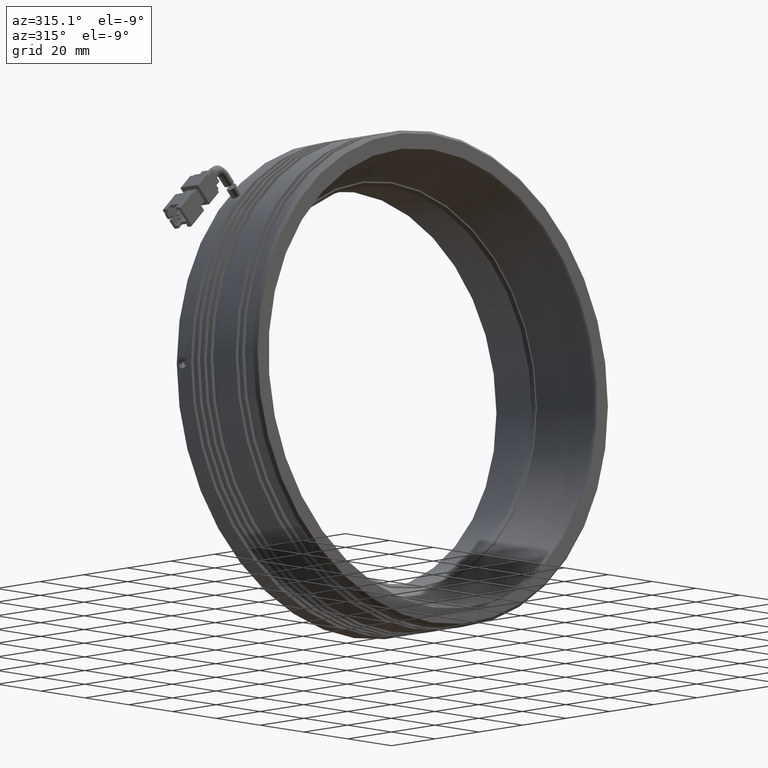
[diagram: clean part render]
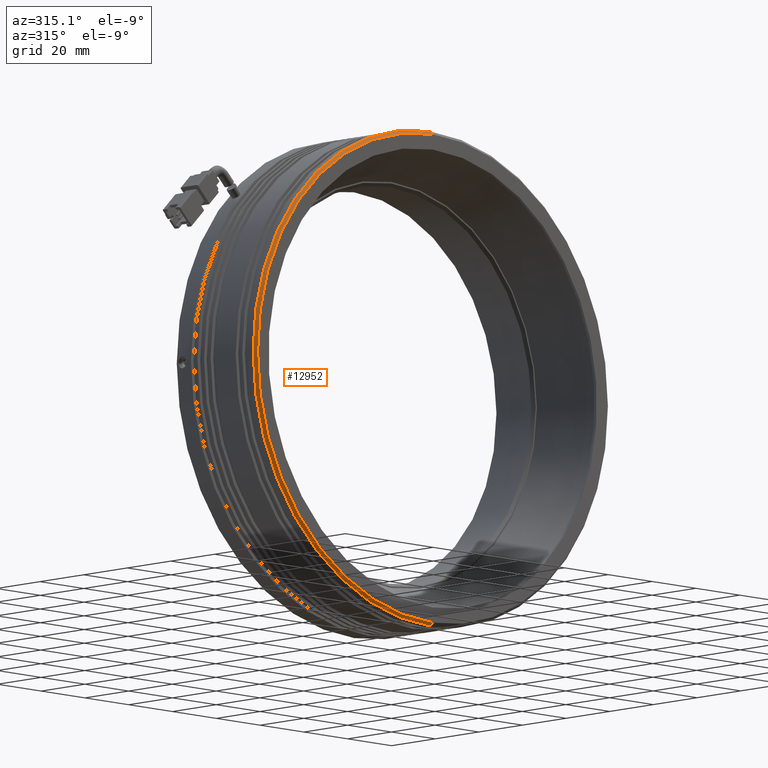
[diagram: same view with one face highlighted and labeled with its STEP entity id]
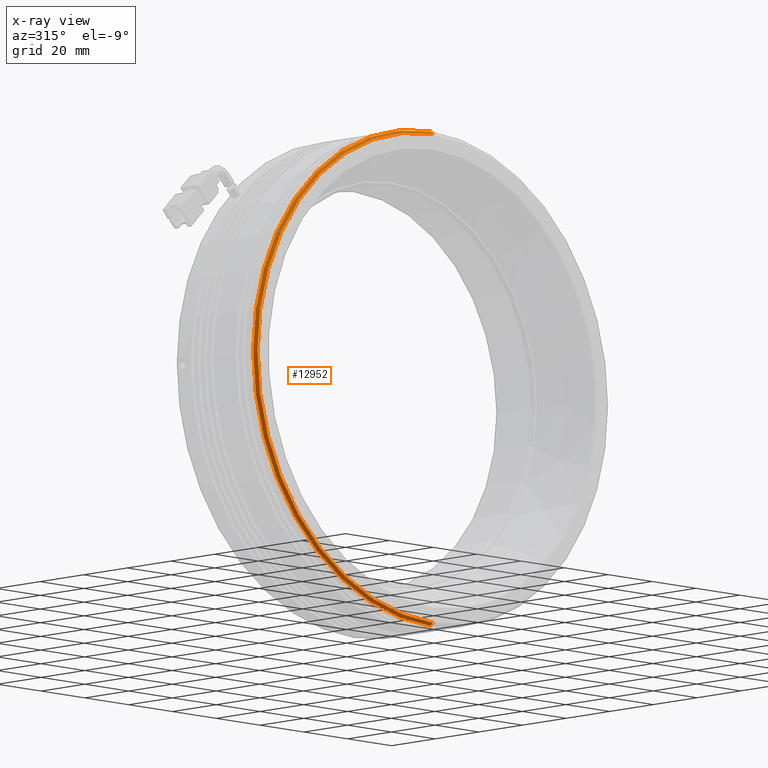
[diagram: x-ray of the same camera — body ghosted, the highlighted face saturated]
A machine part, auxiliary view. The second image highlights one B-rep face of the part: STEP entity #12952.
The next image is the same camera in x-ray: the body ghosted, the highlighted face saturated — about 0% of this face is hidden behind the body in this view.
In plain terms, the highlighted conical surface has half-angle 45 deg.
Its self-contained STEP definition (entity closure, byte-faithful):
#230 = EDGE_CURVE ( 'NONE', #1964, #7452, #5621, .T. ) ;
#249 = CARTESIAN_POINT ( 'NONE',  ( -9.785022266880036000, -9.128885628159958200, 79.99999999999998600 ) ) ;
#761 = DIRECTION ( 'NONE',  ( 8.659560562354931600E-017, 0.7071067811865475700, -0.7071067811865474600 ) ) ;
#947 = CARTESIAN_POINT ( 'NONE',  ( -9.785022266880025300, -9.128885628159958200, -79.99999999999998600 ) ) ;
#1091 = DIRECTION ( 'NONE',  ( -0.0000000000000000000, -1.000000000000000000, -0.0000000000000000000 ) ) ;
#1463 = CARTESIAN_POINT ( 'NONE',  ( -9.785022266880025300, -8.128885628159942200, -81.00000000000000000 ) ) ;
#1799 = EDGE_CURVE ( 'NONE', #2942, #7452, #7441, .T. ) ;
#1835 = DIRECTION ( 'NONE',  ( -0.0000000000000000000, 1.000000000000000000, 0.0000000000000000000 ) ) ;
#1964 = VERTEX_POINT ( 'NONE', #947 ) ;
#2073 = EDGE_LOOP ( 'NONE', ( #2391, #4756, #12316, #10896 ) ) ;
#2164 = VERTEX_POINT ( 'NONE', #249 ) ;
#2391 = ORIENTED_EDGE ( 'NONE', *, *, #230, .F. ) ;
#2904 = DIRECTION ( 'NONE',  ( 0.0000000000000000000, 0.0000000000000000000, 1.000000000000000000 ) ) ;
#2942 = VERTEX_POINT ( 'NONE', #10237 ) ;
#3119 = DIRECTION ( 'NONE',  ( 0.0000000000000000000, 4.283267841918042100E-017, 1.000000000000000000 ) ) ;
#3422 = AXIS2_PLACEMENT_3D ( 'NONE', #3903, #1835, #2904 ) ;
#3473 = CARTESIAN_POINT ( 'NONE',  ( -9.785022266880036000, -8.128885628159942200, 0.0000000000000000000 ) ) ;
#3481 = DIRECTION ( 'NONE',  ( -0.0000000000000000000, 1.000000000000000000, 0.0000000000000000000 ) ) ;
#3903 = CARTESIAN_POINT ( 'NONE',  ( -9.785022266880036000, -8.128885628159942200, 0.0000000000000000000 ) ) ;
#4366 = CIRCLE ( 'NONE', #11224, 79.99999999999998600 ) ;
#4741 = FACE_OUTER_BOUND ( 'NONE', #2073, .T. ) ;
#4756 = ORIENTED_EDGE ( 'NONE', *, *, #10538, .T. ) ;
#5621 = LINE ( 'NONE', #1463, #5920 ) ;
#5920 = VECTOR ( 'NONE', #761, 1000.000000000000000 ) ;
#6579 = AXIS2_PLACEMENT_3D ( 'NONE', #3473, #1091, #3119 ) ;
#7061 = EDGE_CURVE ( 'NONE', #2164, #2942, #10071, .T. ) ;
#7441 = CIRCLE ( 'NONE', #6579, 81.00000000000000000 ) ;
#7452 = VERTEX_POINT ( 'NONE', #9135 ) ;
#8480 = CONICAL_SURFACE ( 'NONE', #3422, 81.00000000000000000, 0.7853981633974482800 ) ;
#9135 = CARTESIAN_POINT ( 'NONE',  ( -9.785022266880036000, -8.128885628159942200, -81.00000000000000000 ) ) ;
#9434 = CARTESIAN_POINT ( 'NONE',  ( -9.785022266880036000, -8.128885628159942200, 81.00000000000000000 ) ) ;
#9468 = DIRECTION ( 'NONE',  ( 0.0000000000000000000, 0.7071067811865475700, 0.7071067811865474600 ) ) ;
#9508 = CARTESIAN_POINT ( 'NONE',  ( -9.785022266880036000, -9.128885628159958200, 0.0000000000000000000 ) ) ;
#9992 = VECTOR ( 'NONE', #9468, 1000.000000000000000 ) ;
#10071 = LINE ( 'NONE', #9434, #9992 ) ;
#10237 = CARTESIAN_POINT ( 'NONE',  ( -9.785022266880025300, -8.128885628159942200, 81.00000000000000000 ) ) ;
#10526 = DIRECTION ( 'NONE',  ( 0.0000000000000000000, 0.0000000000000000000, 1.000000000000000000 ) ) ;
#10538 = EDGE_CURVE ( 'NONE', #1964, #2164, #4366, .T. ) ;
#10896 = ORIENTED_EDGE ( 'NONE', *, *, #1799, .T. ) ;
#11224 = AXIS2_PLACEMENT_3D ( 'NONE', #9508, #3481, #10526 ) ;
#12316 = ORIENTED_EDGE ( 'NONE', *, *, #7061, .T. ) ;
#12952 = ADVANCED_FACE ( 'NONE', ( #4741 ), #8480, .T. ) ;